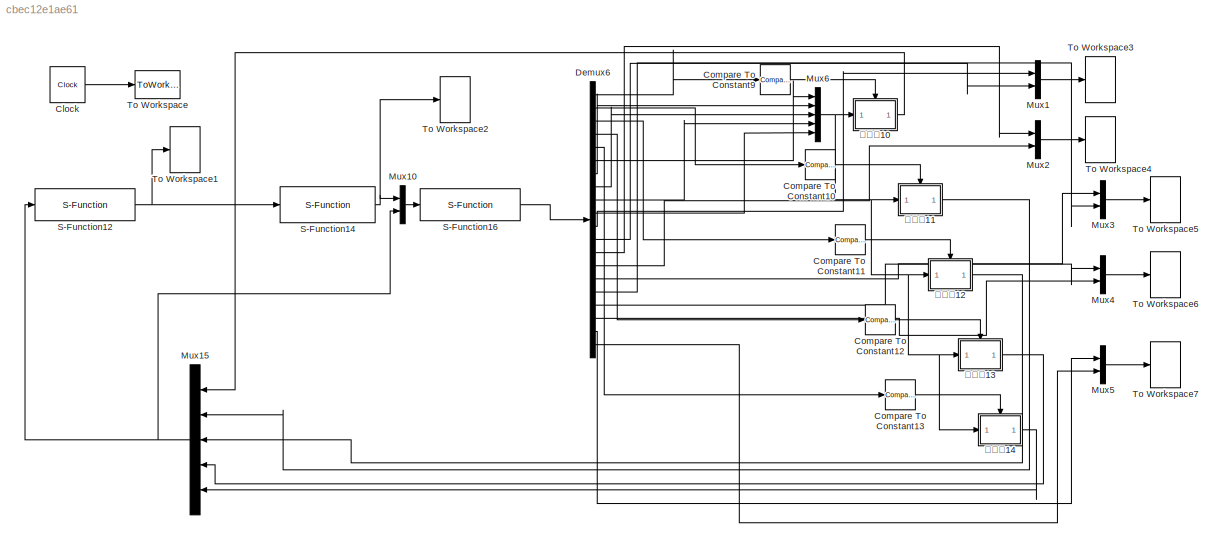
MODEL slx_cbec12e1ae61
KIND model
CONFIG AbsTol = auto
CONFIG EnableMultiTasking = on
CONFIG FixedStep = 0.001
CONFIG MaxStep = auto
CONFIG MinStep = auto
CONFIG RelTol = 1e-3
CONFIG SampleTimeConstraint = Unconstrained
CONFIG Solver = ode4
CONFIG SolverName = ode4
CONFIG StartTime = 0.0
CONFIG StopTime = 5
BLOCK [Clock] Clock
  DisplayTime = on
BLOCK [Reference] Compare To Constant10  REF=simulink/Logic and Bit
Operations/Compare
To Constant
  Ports = [1, 1]
  SourceBlock = simulink/Logic and Bit\nOperations/Compare\nTo Constant
  SourceProductBaseCode = SL
  SourceProductName = Simulink
  SourceType = Compare To Constant
BLOCK [Reference] Compare To Constant11  REF=simulink/Logic and Bit
Operations/Compare
To Constant
  Ports = [1, 1]
  SourceBlock = simulink/Logic and Bit\nOperations/Compare\nTo Constant
  SourceProductBaseCode = SL
  SourceProductName = Simulink
  SourceType = Compare To Constant
BLOCK [Reference] Compare To Constant12  REF=simulink/Logic and Bit
Operations/Compare
To Constant
  Ports = [1, 1]
  SourceBlock = simulink/Logic and Bit\nOperations/Compare\nTo Constant
  SourceProductBaseCode = SL
  SourceProductName = Simulink
  SourceType = Compare To Constant
BLOCK [Reference] Compare To Constant13  REF=simulink/Logic and Bit
Operations/Compare
To Constant
  Ports = [1, 1]
  SourceBlock = simulink/Logic and Bit\nOperations/Compare\nTo Constant
  SourceProductBaseCode = SL
  SourceProductName = Simulink
  SourceType = Compare To Constant
BLOCK [Reference] Compare To Constant9  REF=simulink/Logic and Bit
Operations/Compare
To Constant
  Ports = [1, 1]
  SourceBlock = simulink/Logic and Bit\nOperations/Compare\nTo Constant
  SourceProductBaseCode = SL
  SourceProductName = Simulink
  SourceType = Compare To Constant
BLOCK [Demux] Demux6
  DisplayOption = bar
  Outputs = 20
  Ports = [1, 20]
BLOCK [Mux] Mux1
  DisplayOption = bar
  Inputs = 2
  Ports = [2, 1]
BLOCK [Mux] Mux10
  DisplayOption = bar
  Inputs = 2
  Ports = [2, 1]
BLOCK [Mux] Mux15
  DisplayOption = bar
  Inputs = 5
  Ports = [5, 1]
BLOCK [Mux] Mux2
  DisplayOption = bar
  Inputs = 2
  Ports = [2, 1]
BLOCK [Mux] Mux3
  DisplayOption = bar
  Inputs = 2
  Ports = [2, 1]
BLOCK [Mux] Mux4
  DisplayOption = bar
  Inputs = 2
  Ports = [2, 1]
BLOCK [Mux] Mux5
  DisplayOption = bar
  Inputs = 2
  Ports = [2, 1]
BLOCK [Mux] Mux6
  DisplayOption = bar
  Inputs = 5
  Ports = [5, 1]
BLOCK [S-Function] S-Function12
  EnableBusSupport = off
  FunctionName = ctrl
  Ports = [1, 1]
  SFcnIsStateOwnerBlock = off
  SFunctionDeploymentMode = off
BLOCK [S-Function] S-Function14
  EnableBusSupport = off
  FunctionName = plant
  Ports = [1, 1]
  SFcnIsStateOwnerBlock = off
  SFunctionDeploymentMode = off
BLOCK [S-Function] S-Function16
  EnableBusSupport = off
  FunctionName = trigf
  Ports = [1, 1]
  SFcnIsStateOwnerBlock = off
  SFunctionDeploymentMode = off
BLOCK [ToWorkspace] To Workspace
  MaxDataPoints = inf
  Ports = [1]
  SampleTime = -1
  VariableName = t
BLOCK [ToWorkspace] To Workspace1
  MaxDataPoints = inf
  Ports = [1]
  SampleTime = -1
  VariableName = ut1
BLOCK [ToWorkspace] To Workspace2
  MaxDataPoints = inf
  Ports = [1]
  SampleTime = -1
  VariableName = y
BLOCK [ToWorkspace] To Workspace3
  MaxDataPoints = inf
  Ports = [1]
  SampleTime = -1
  VariableName = y2
BLOCK [ToWorkspace] To Workspace4
  MaxDataPoints = inf
  Ports = [1]
  SampleTime = -1
  VariableName = y3
BLOCK [ToWorkspace] To Workspace5
  MaxDataPoints = inf
  Ports = [1]
  SampleTime = -1
  VariableName = y4
BLOCK [ToWorkspace] To Workspace6
  MaxDataPoints = inf
  Ports = [1]
  SampleTime = -1
  VariableName = y5
BLOCK [ToWorkspace] To Workspace7
  MaxDataPoints = inf
  Ports = [1]
  SampleTime = -1
  VariableName = y6
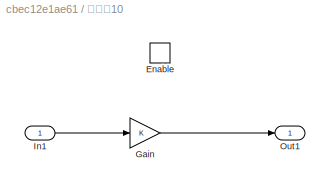
BLOCK [SubSystem] 子系统10
  Ports = [1, 1, 1]
  RequestExecContextInheritance = off
  TreatAsAtomicUnit = on
BLOCK [EnablePort] 子系统10/Enable
  Ports = []
BLOCK [Gain] 子系统10/Gain
  OutDataTypeStr = Inherit: Inherit via internal rule
  ParamDataTypeStr = Inherit: Inherit via internal rule
  SaturateOnIntegerOverflow = off
BLOCK [Inport] 子系统10/In1
  IconDisplay = Port number
BLOCK [Outport] 子系统10/Out1
  IconDisplay = Port number
  VectorParamsAs1DForOutWhenUnconnected = on
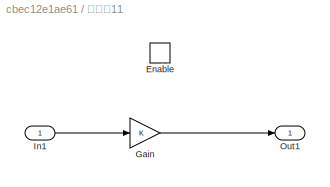
BLOCK [SubSystem] 子系统11
  Ports = [1, 1, 1]
  RequestExecContextInheritance = off
  TreatAsAtomicUnit = on
BLOCK [EnablePort] 子系统11/Enable
  Ports = []
BLOCK [Gain] 子系统11/Gain
  OutDataTypeStr = Inherit: Inherit via internal rule
  ParamDataTypeStr = Inherit: Inherit via internal rule
  SaturateOnIntegerOverflow = off
BLOCK [Inport] 子系统11/In1
  IconDisplay = Port number
BLOCK [Outport] 子系统11/Out1
  IconDisplay = Port number
  VectorParamsAs1DForOutWhenUnconnected = on
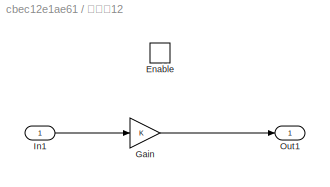
BLOCK [SubSystem] 子系统12
  Ports = [1, 1, 1]
  RequestExecContextInheritance = off
  TreatAsAtomicUnit = on
BLOCK [EnablePort] 子系统12/Enable
  Ports = []
BLOCK [Gain] 子系统12/Gain
  OutDataTypeStr = Inherit: Inherit via internal rule
  ParamDataTypeStr = Inherit: Inherit via internal rule
  SaturateOnIntegerOverflow = off
BLOCK [Inport] 子系统12/In1
  IconDisplay = Port number
BLOCK [Outport] 子系统12/Out1
  IconDisplay = Port number
  VectorParamsAs1DForOutWhenUnconnected = on
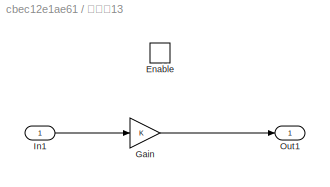
BLOCK [SubSystem] 子系统13
  Ports = [1, 1, 1]
  RequestExecContextInheritance = off
  TreatAsAtomicUnit = on
BLOCK [EnablePort] 子系统13/Enable
  Ports = []
BLOCK [Gain] 子系统13/Gain
  OutDataTypeStr = Inherit: Inherit via internal rule
  ParamDataTypeStr = Inherit: Inherit via internal rule
  SaturateOnIntegerOverflow = off
BLOCK [Inport] 子系统13/In1
  IconDisplay = Port number
BLOCK [Outport] 子系统13/Out1
  IconDisplay = Port number
  VectorParamsAs1DForOutWhenUnconnected = on
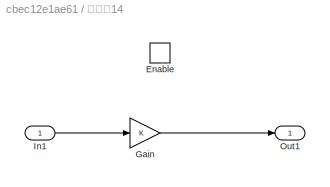
BLOCK [SubSystem] 子系统14
  Ports = [1, 1, 1]
  RequestExecContextInheritance = off
  TreatAsAtomicUnit = on
BLOCK [EnablePort] 子系统14/Enable
  Ports = []
BLOCK [Gain] 子系统14/Gain
  OutDataTypeStr = Inherit: Inherit via internal rule
  ParamDataTypeStr = Inherit: Inherit via internal rule
  SaturateOnIntegerOverflow = off
BLOCK [Inport] 子系统14/In1
  IconDisplay = Port number
BLOCK [Outport] 子系统14/Out1
  IconDisplay = Port number
  VectorParamsAs1DForOutWhenUnconnected = on
LINE Clock:1 -> To Workspace:1
LINE Compare To Constant10:1 -> 子系统11:enable
LINE Compare To Constant11:1 -> 子系统12:enable
LINE Compare To Constant12:1 -> 子系统13:enable
LINE Compare To Constant13:1 -> 子系统14:enable
LINE Compare To Constant9:1 -> 子系统10:enable
LINE Demux6:1 -> Compare To Constant9:1
LINE Demux6:10 -> Mux6:5
LINE Demux6:11 -> Mux1:1
LINE Demux6:12 -> Mux1:2
LINE Demux6:13 -> Mux2:1
LINE Demux6:14 -> Mux2:2
LINE Demux6:15 -> Mux3:1
LINE Demux6:16 -> Mux3:2
LINE Demux6:17 -> Mux4:1
LINE Demux6:18 -> Mux4:2
LINE Demux6:19 -> Mux5:1
LINE Demux6:2 -> Compare To Constant10:1
LINE Demux6:20 -> Mux5:2
LINE Demux6:3 -> Compare To Constant11:1
LINE Demux6:4 -> Compare To Constant12:1
LINE Demux6:5 -> Compare To Constant13:1
LINE Demux6:6 -> Mux6:1
LINE Demux6:7 -> Mux6:2
LINE Demux6:8 -> Mux6:3
LINE Demux6:9 -> Mux6:4
LINE Mux10:1 -> S-Function16:1
NET Mux15:1 -> Mux10:2, S-Function12:1
LINE Mux1:1 -> To Workspace3:1
LINE Mux2:1 -> To Workspace4:1
LINE Mux3:1 -> To Workspace5:1
LINE Mux4:1 -> To Workspace6:1
LINE Mux5:1 -> To Workspace7:1
NET Mux6:1 -> 子系统10:1, 子系统11:1, 子系统12:1, 子系统13:1, 子系统14:1
NET S-Function12:1 -> S-Function14:1, To Workspace1:1
NET S-Function14:1 -> Mux10:1, To Workspace2:1
LINE S-Function16:1 -> Demux6:1
LINE 子系统10/Gain:1 -> 子系统10/Out1:1
LINE 子系统10/In1:1 -> 子系统10/Gain:1
LINE 子系统10:1 -> Mux15:1
LINE 子系统11/Gain:1 -> 子系统11/Out1:1
LINE 子系统11/In1:1 -> 子系统11/Gain:1
LINE 子系统11:1 -> Mux15:2
LINE 子系统12/Gain:1 -> 子系统12/Out1:1
LINE 子系统12/In1:1 -> 子系统12/Gain:1
LINE 子系统12:1 -> Mux15:3
LINE 子系统13/Gain:1 -> 子系统13/Out1:1
LINE 子系统13/In1:1 -> 子系统13/Gain:1
LINE 子系统13:1 -> Mux15:4
LINE 子系统14/Gain:1 -> 子系统14/Out1:1
LINE 子系统14/In1:1 -> 子系统14/Gain:1
LINE 子系统14:1 -> Mux15:5
note: NET lines group one-source signal fan-out (src -> all destinations, sorted); 1:1 wires keep LINE
